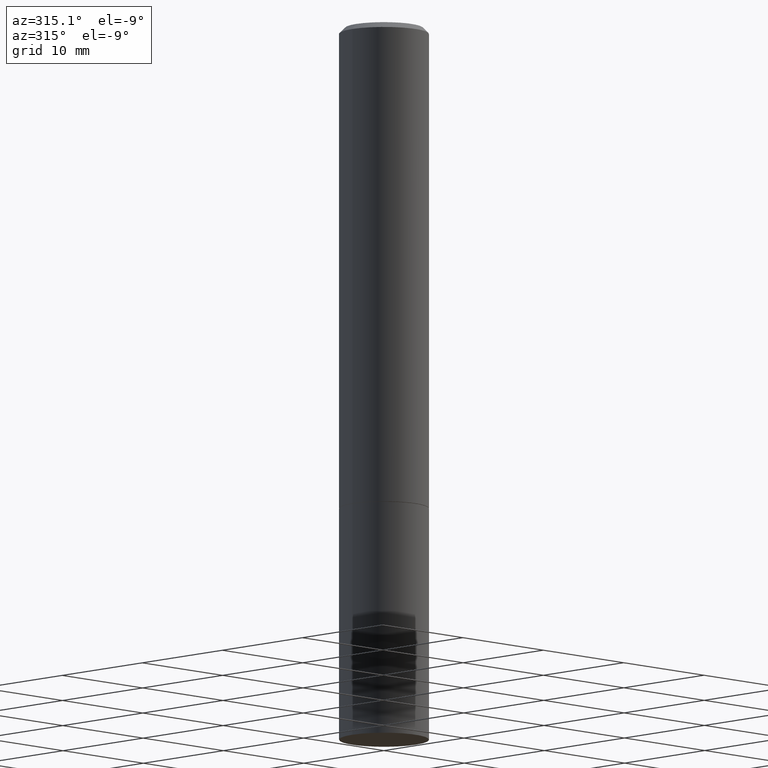
[diagram: clean part render]
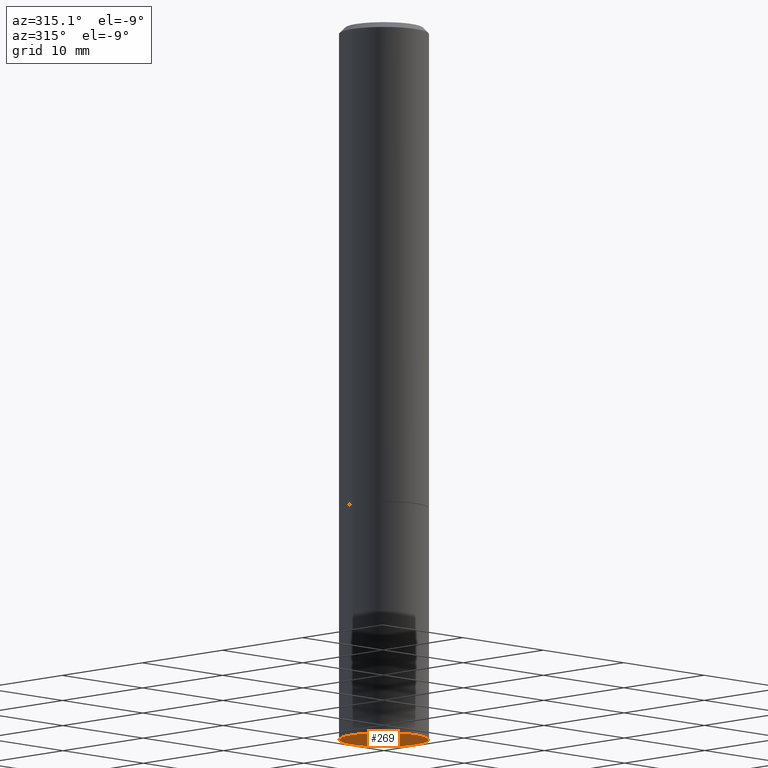
[diagram: same view with one face highlighted and labeled with its STEP entity id]
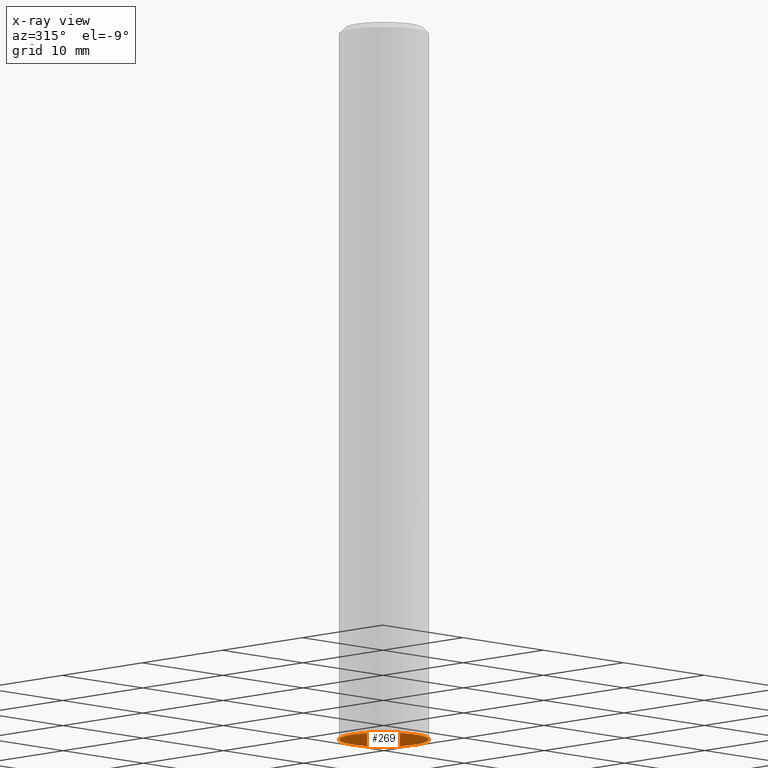
[diagram: x-ray of the same camera — body ghosted, the highlighted face saturated]
A machine part, auxiliary view. The second image highlights one B-rep face of the part: STEP entity #269.
The next image is the same camera in x-ray: the body ghosted, the highlighted face saturated — about 0% of this face is hidden behind the body in this view.
In plain terms, the highlighted planar face has unit normal (0, -0, -1).
Its self-contained STEP definition (entity closure, byte-faithful):
#6 = DIRECTION ( 'NONE',  ( -2.445468806185136597E-29, 3.491481338843145583E-15, 1.000000000000000000 ) ) ;
#10 = CARTESIAN_POINT ( 'NONE',  ( -0.1562500000000000000, -6.200938898912389918E-15, -2.500000000000000000 ) ) ;
#24 = AXIS2_PLACEMENT_3D ( 'NONE', #362, #332, #274 ) ;
#36 = EDGE_CURVE ( 'NONE', #148, #159, #39, .T. ) ;
#39 = CIRCLE ( 'NONE', #335, 0.1562500000000000000 ) ;
#51 = EDGE_LOOP ( 'NONE', ( #300, #219 ) ) ;
#56 = CIRCLE ( 'NONE', #166, 0.1562500000000000000 ) ;
#64 = EDGE_CURVE ( 'NONE', #159, #148, #56, .T. ) ;
#70 = CARTESIAN_POINT ( 'NONE',  ( 6.113672015462842613E-29, -8.728703347107864943E-15, -2.500000000000000000 ) ) ;
#81 = PLANE ( 'NONE',  #24 ) ;
#148 = VERTEX_POINT ( 'NONE', #270 ) ;
#151 = CARTESIAN_POINT ( 'NONE',  ( 6.113672015462842613E-29, -8.728703347107864943E-15, -2.500000000000000000 ) ) ;
#156 = FACE_OUTER_BOUND ( 'NONE', #51, .T. ) ;
#159 = VERTEX_POINT ( 'NONE', #10 ) ;
#166 = AXIS2_PLACEMENT_3D ( 'NONE', #151, #6, #266 ) ;
#174 = DIRECTION ( 'NONE',  ( -2.445468806185136597E-29, 3.491481338843145583E-15, 1.000000000000000000 ) ) ;
#219 = ORIENTED_EDGE ( 'NONE', *, *, #64, .F. ) ;
#266 = DIRECTION ( 'NONE',  ( 1.000000000000000000, -6.982962677686269077E-15, 0.000000000000000000 ) ) ;
#269 = ADVANCED_FACE ( 'NONE', ( #156 ), #81, .T. ) ;
#270 = CARTESIAN_POINT ( 'NONE',  ( 0.1562500000000000000, -9.819791265496344905E-15, -2.500000000000000000 ) ) ;
#274 = DIRECTION ( 'NONE',  ( -1.000000000000000000, 6.982962677686265922E-15, -4.876176775795935793E-29 ) ) ;
#292 = DIRECTION ( 'NONE',  ( 1.000000000000000000, -6.982962677686269077E-15, 0.000000000000000000 ) ) ;
#300 = ORIENTED_EDGE ( 'NONE', *, *, #36, .F. ) ;
#332 = DIRECTION ( 'NONE',  ( 2.438088387897960049E-29, -3.491481338843145188E-15, -1.000000000000000000 ) ) ;
#335 = AXIS2_PLACEMENT_3D ( 'NONE', #70, #174, #292 ) ;
#362 = CARTESIAN_POINT ( 'NONE',  ( 1.091087918388540310E-15, 0.1562499999999912570, -2.500000000000000444 ) ) ;